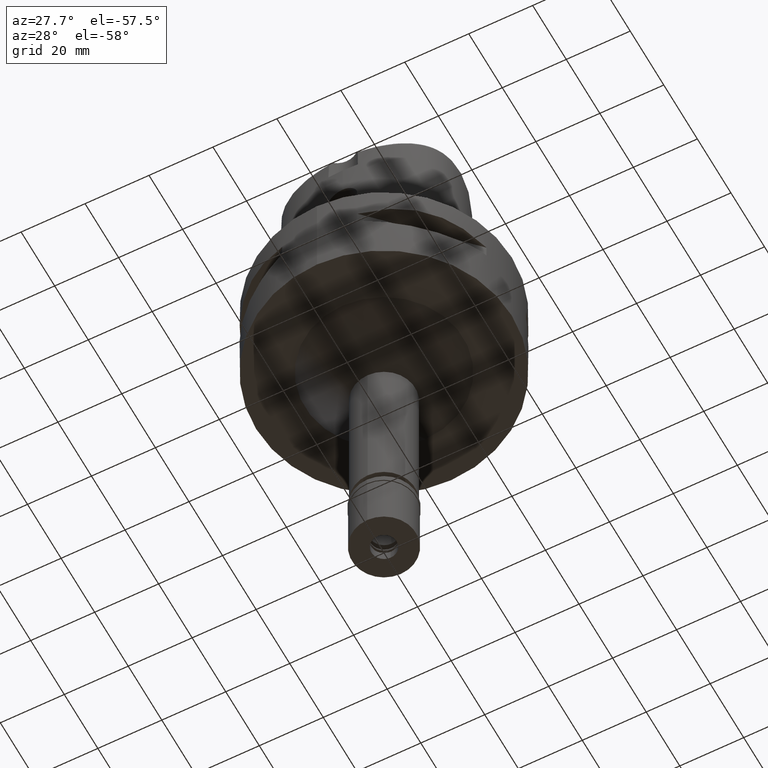
[diagram: clean part render]
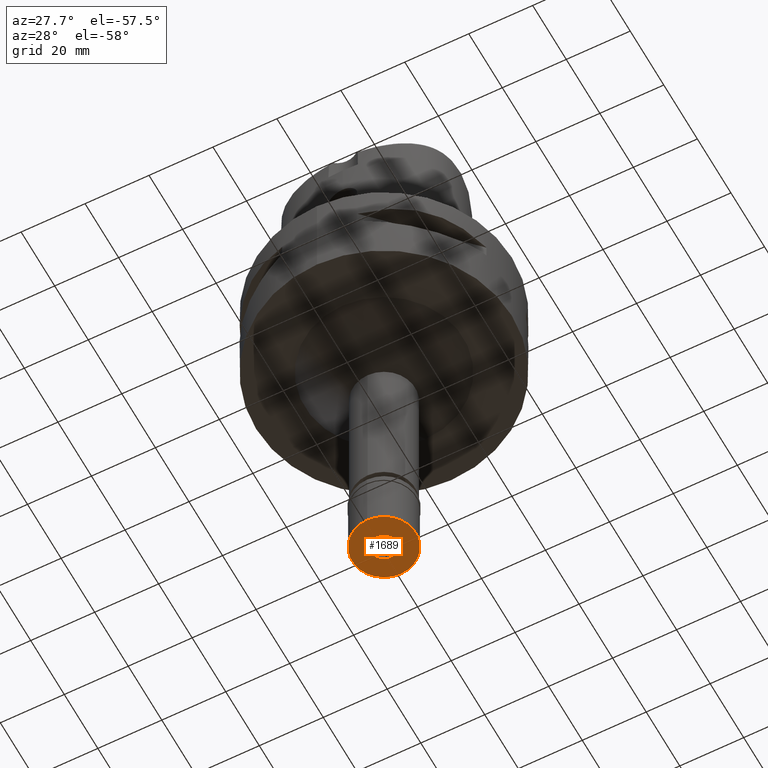
[diagram: same view with one face highlighted and labeled with its STEP entity id]
A machine part, auxiliary view. The second image highlights one B-rep face of the part: STEP entity #1689.
In plain terms, the highlighted planar face has unit normal (0, 0, -1).
Its self-contained STEP definition (entity closure, byte-faithful):
#260 = ORIENTED_EDGE ( 'NONE', *, *, #711, .F. ) ;
#317 = DIRECTION ( 'NONE',  ( 0.0000000000000000000, 0.0000000000000000000, -1.000000000000000000 ) ) ;
#354 = AXIS2_PLACEMENT_3D ( 'NONE', #3833, #1898, #4271 ) ;
#453 = EDGE_CURVE ( 'NONE', #1991, #4724, #2934, .T. ) ;
#586 = DIRECTION ( 'NONE',  ( 0.0000000000000000000, 0.0000000000000000000, -1.000000000000000000 ) ) ;
#681 = EDGE_LOOP ( 'NONE', ( #1256, #260 ) ) ;
#711 = EDGE_CURVE ( 'NONE', #4724, #1991, #2612, .T. ) ;
#1007 = CARTESIAN_POINT ( 'NONE',  ( 0.0000000000000000000, 10.00000000000000000, -20.60000000000000142 ) ) ;
#1029 = DIRECTION ( 'NONE',  ( 0.0000000000000000000, 1.000000000000000000, 0.0000000000000000000 ) ) ;
#1030 = VERTEX_POINT ( 'NONE', #1007 ) ;
#1034 = CIRCLE ( 'NONE', #2125, 10.00000000000000000 ) ;
#1256 = ORIENTED_EDGE ( 'NONE', *, *, #453, .F. ) ;
#1352 = EDGE_CURVE ( 'NONE', #2825, #1030, #4242, .T. ) ;
#1391 = FACE_OUTER_BOUND ( 'NONE', #2780, .T. ) ;
#1689 = ADVANCED_FACE ( 'NONE', ( #1391, #4547 ), #2797, .T. ) ;
#1898 = DIRECTION ( 'NONE',  ( 0.0000000000000000000, 0.0000000000000000000, -1.000000000000000000 ) ) ;
#1991 = VERTEX_POINT ( 'NONE', #2620 ) ;
#2046 = ORIENTED_EDGE ( 'NONE', *, *, #3555, .F. ) ;
#2125 = AXIS2_PLACEMENT_3D ( 'NONE', #4631, #4579, #1029 ) ;
#2612 = CIRCLE ( 'NONE', #354, 3.950000000000000178 ) ;
#2620 = CARTESIAN_POINT ( 'NONE',  ( 0.0000000000000000000, 3.950000000000000178, -20.60000000000000142 ) ) ;
#2633 = DIRECTION ( 'NONE',  ( 0.0000000000000000000, 1.000000000000000000, 0.0000000000000000000 ) ) ;
#2774 = ORIENTED_EDGE ( 'NONE', *, *, #1352, .F. ) ;
#2780 = EDGE_LOOP ( 'NONE', ( #2046, #2774 ) ) ;
#2797 = PLANE ( 'NONE',  #4080 ) ;
#2825 = VERTEX_POINT ( 'NONE', #2950 ) ;
#2934 = CIRCLE ( 'NONE', #4007, 3.950000000000000178 ) ;
#2950 = CARTESIAN_POINT ( 'NONE',  ( 0.0000000000000000000, -10.00000000000000000, -20.60000000000000142 ) ) ;
#3087 = CARTESIAN_POINT ( 'NONE',  ( 0.0000000000000000000, 0.0000000000000000000, -20.60000000000000142 ) ) ;
#3162 = DIRECTION ( 'NONE',  ( 0.0000000000000000000, -1.000000000000000000, 0.0000000000000000000 ) ) ;
#3328 = CARTESIAN_POINT ( 'NONE',  ( 0.0000000000000000000, -3.950000000000000178, -20.60000000000000142 ) ) ;
#3555 = EDGE_CURVE ( 'NONE', #1030, #2825, #1034, .T. ) ;
#3566 = CARTESIAN_POINT ( 'NONE',  ( 0.0000000000000000000, 0.0000000000000000000, -20.60000000000000142 ) ) ;
#3776 = DIRECTION ( 'NONE',  ( 0.0000000000000000000, -1.000000000000000000, 0.0000000000000000000 ) ) ;
#3833 = CARTESIAN_POINT ( 'NONE',  ( 0.0000000000000000000, 0.0000000000000000000, -20.60000000000000142 ) ) ;
#3853 = DIRECTION ( 'NONE',  ( 0.0000000000000000000, 0.0000000000000000000, 1.000000000000000000 ) ) ;
#4007 = AXIS2_PLACEMENT_3D ( 'NONE', #4174, #586, #2633 ) ;
#4080 = AXIS2_PLACEMENT_3D ( 'NONE', #3566, #317, #3162 ) ;
#4174 = CARTESIAN_POINT ( 'NONE',  ( 0.0000000000000000000, 0.0000000000000000000, -20.60000000000000142 ) ) ;
#4242 = CIRCLE ( 'NONE', #4821, 10.00000000000000000 ) ;
#4271 = DIRECTION ( 'NONE',  ( 0.0000000000000000000, -1.000000000000000000, 0.0000000000000000000 ) ) ;
#4547 = FACE_BOUND ( 'NONE', #681, .T. ) ;
#4579 = DIRECTION ( 'NONE',  ( 0.0000000000000000000, 0.0000000000000000000, 1.000000000000000000 ) ) ;
#4631 = CARTESIAN_POINT ( 'NONE',  ( 0.0000000000000000000, 0.0000000000000000000, -20.60000000000000142 ) ) ;
#4724 = VERTEX_POINT ( 'NONE', #3328 ) ;
#4821 = AXIS2_PLACEMENT_3D ( 'NONE', #3087, #3853, #3776 ) ;